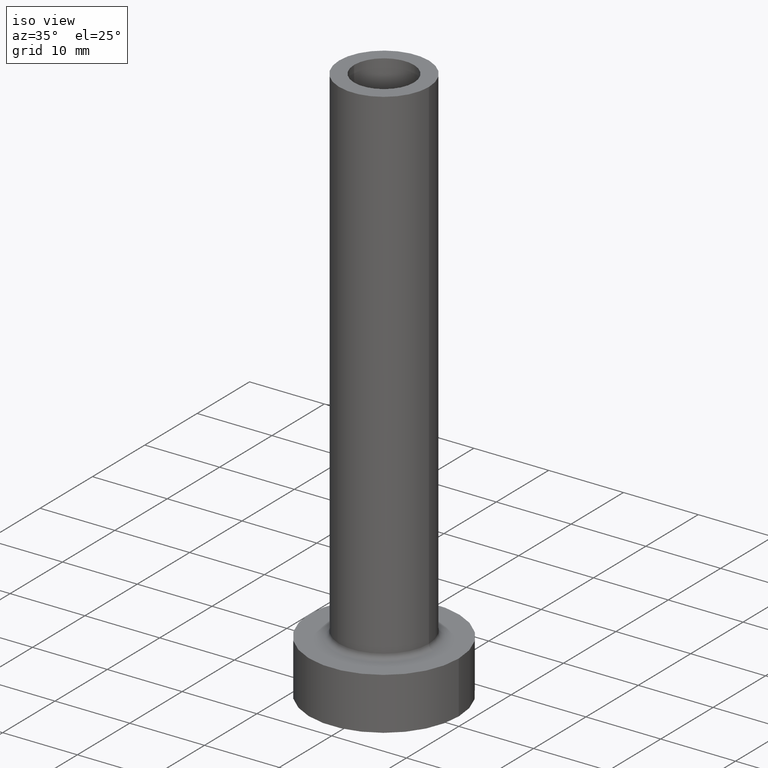
[diagram: clean part render]
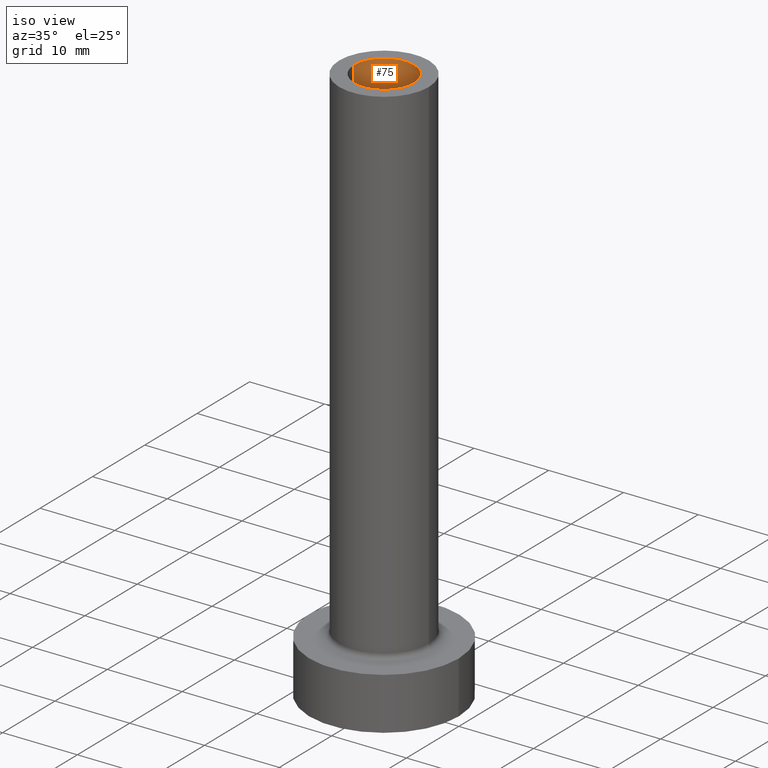
[diagram: same view with one face highlighted and labeled with its STEP entity id]
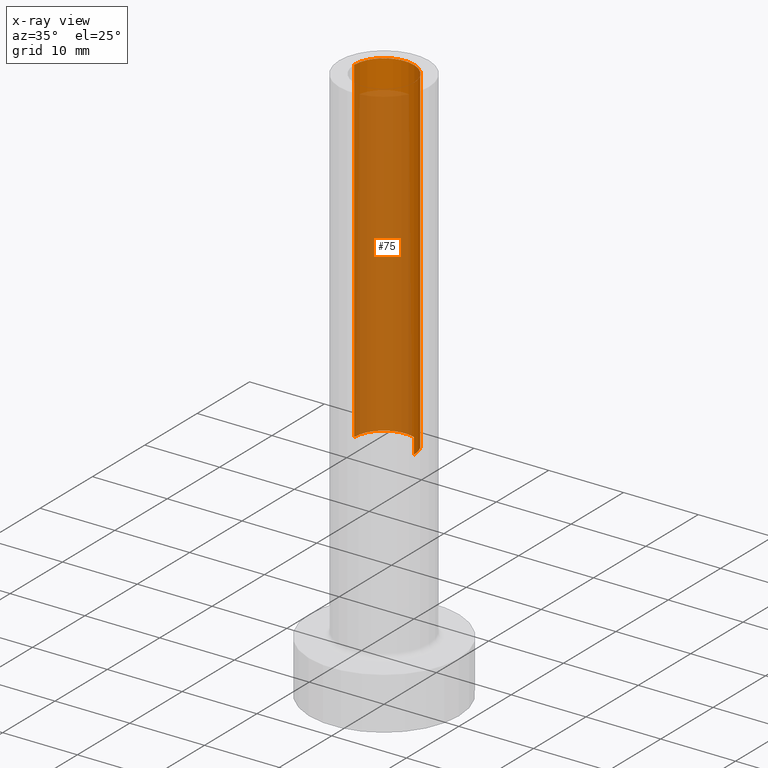
[diagram: x-ray of the same camera — body ghosted, the highlighted face saturated]
A machine part, iso view. The second image highlights one B-rep face of the part: STEP entity #75.
The next image is the same camera in x-ray: the body ghosted, the highlighted face saturated — about 73% of this face is hidden behind the body in this view.
In plain terms, the highlighted cylindrical surface (edge-blend (fillet) strip) has radius 4 mm, axis along (0, 0, -1).
Its self-contained STEP definition (entity closure, byte-faithful):
#4 = CARTESIAN_POINT ( 'NONE',  ( 0.000000000000000000, 0.000000000000000000, 75.00000000000001421 ) ) ;
#20 = DIRECTION ( 'NONE',  ( 0.000000000000000000, 0.000000000000000000, 1.000000000000000000 ) ) ;
#23 = AXIS2_PLACEMENT_3D ( 'NONE', #130, #20, #272 ) ;
#38 = LINE ( 'NONE', #179, #453 ) ;
#47 = CYLINDRICAL_SURFACE ( 'NONE', #114, 4.000000000000000000 ) ;
#68 = VERTEX_POINT ( 'NONE', #255 ) ;
#75 = ADVANCED_FACE ( 'NONE', ( #225 ), #47, .F. ) ;
#80 = CIRCLE ( 'NONE', #23, 4.000000000000000000 ) ;
#112 = DIRECTION ( 'NONE',  ( 1.000000000000000000, 0.000000000000000000, 0.000000000000000000 ) ) ;
#114 = AXIS2_PLACEMENT_3D ( 'NONE', #4, #118, #190 ) ;
#118 = DIRECTION ( 'NONE',  ( 0.000000000000000000, 0.000000000000000000, -1.000000000000000000 ) ) ;
#125 = AXIS2_PLACEMENT_3D ( 'NONE', #188, #153, #112 ) ;
#130 = CARTESIAN_POINT ( 'NONE',  ( 0.000000000000000000, 0.000000000000000000, 30.00000000000001421 ) ) ;
#136 = LINE ( 'NONE', #171, #426 ) ;
#138 = EDGE_CURVE ( 'NONE', #68, #197, #287, .T. ) ;
#153 = DIRECTION ( 'NONE',  ( 0.000000000000000000, 0.000000000000000000, 1.000000000000000000 ) ) ;
#164 = ORIENTED_EDGE ( 'NONE', *, *, #138, .T. ) ;
#171 = CARTESIAN_POINT ( 'NONE',  ( 4.000000000000000000, 4.898587196589411843E-16, 75.00000000000001421 ) ) ;
#177 = EDGE_CURVE ( 'NONE', #286, #381, #80, .T. ) ;
#179 = CARTESIAN_POINT ( 'NONE',  ( -4.000000000000000000, 0.000000000000000000, 75.00000000000001421 ) ) ;
#184 = DIRECTION ( 'NONE',  ( 0.000000000000000000, 0.000000000000000000, -1.000000000000000000 ) ) ;
#188 = CARTESIAN_POINT ( 'NONE',  ( 0.000000000000000000, 0.000000000000000000, 75.00000000000001421 ) ) ;
#190 = DIRECTION ( 'NONE',  ( -1.000000000000000000, 0.000000000000000000, 0.000000000000000000 ) ) ;
#197 = VERTEX_POINT ( 'NONE', #417 ) ;
#225 = FACE_OUTER_BOUND ( 'NONE', #274, .T. ) ;
#248 = CARTESIAN_POINT ( 'NONE',  ( 4.000000000000000000, 4.898587196589411843E-16, 30.00000000000001421 ) ) ;
#255 = CARTESIAN_POINT ( 'NONE',  ( 4.000000000000000000, 4.898587196589411843E-16, 75.00000000000001421 ) ) ;
#272 = DIRECTION ( 'NONE',  ( 1.000000000000000000, 0.000000000000000000, 0.000000000000000000 ) ) ;
#274 = EDGE_LOOP ( 'NONE', ( #339, #164, #379, #376 ) ) ;
#286 = VERTEX_POINT ( 'NONE', #248 ) ;
#287 = CIRCLE ( 'NONE', #125, 4.000000000000000000 ) ;
#315 = CARTESIAN_POINT ( 'NONE',  ( -4.000000000000000000, 0.000000000000000000, 30.00000000000001421 ) ) ;
#339 = ORIENTED_EDGE ( 'NONE', *, *, #358, .F. ) ;
#358 = EDGE_CURVE ( 'NONE', #68, #286, #136, .T. ) ;
#376 = ORIENTED_EDGE ( 'NONE', *, *, #177, .F. ) ;
#379 = ORIENTED_EDGE ( 'NONE', *, *, #430, .T. ) ;
#381 = VERTEX_POINT ( 'NONE', #315 ) ;
#417 = CARTESIAN_POINT ( 'NONE',  ( -4.000000000000000000, 0.000000000000000000, 75.00000000000001421 ) ) ;
#424 = DIRECTION ( 'NONE',  ( 0.000000000000000000, 0.000000000000000000, -1.000000000000000000 ) ) ;
#426 = VECTOR ( 'NONE', #424, 1000.000000000000000 ) ;
#430 = EDGE_CURVE ( 'NONE', #197, #381, #38, .T. ) ;
#453 = VECTOR ( 'NONE', #184, 1000.000000000000000 ) ;